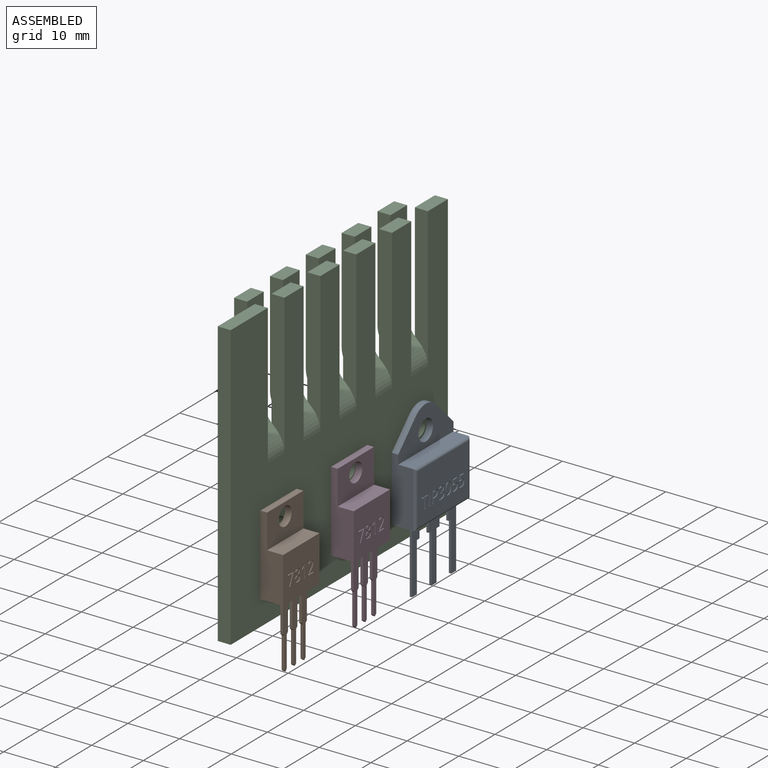
[diagram: assembled view]
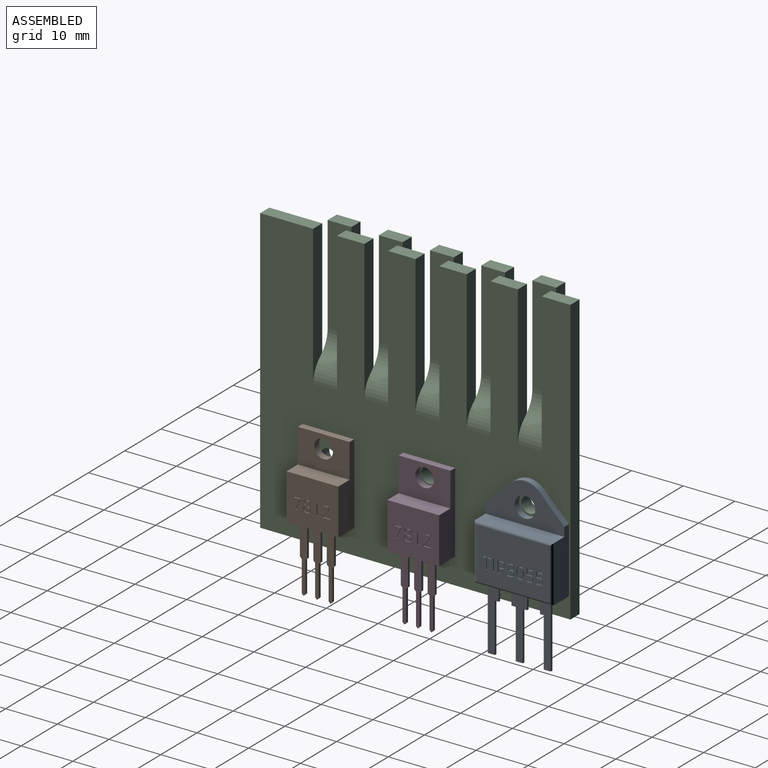
[diagram: assembled view, second angle]
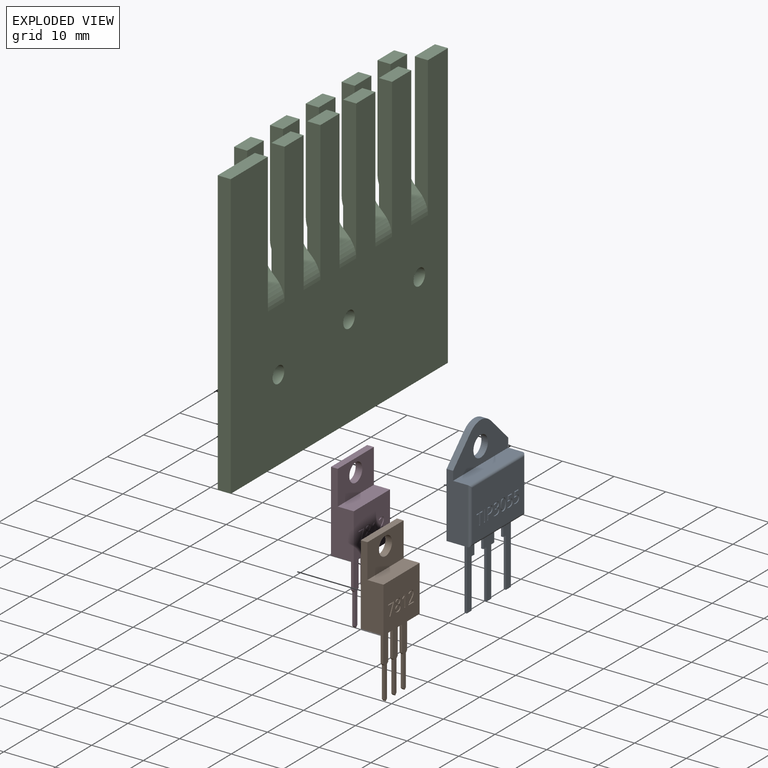
[diagram: exploded view]
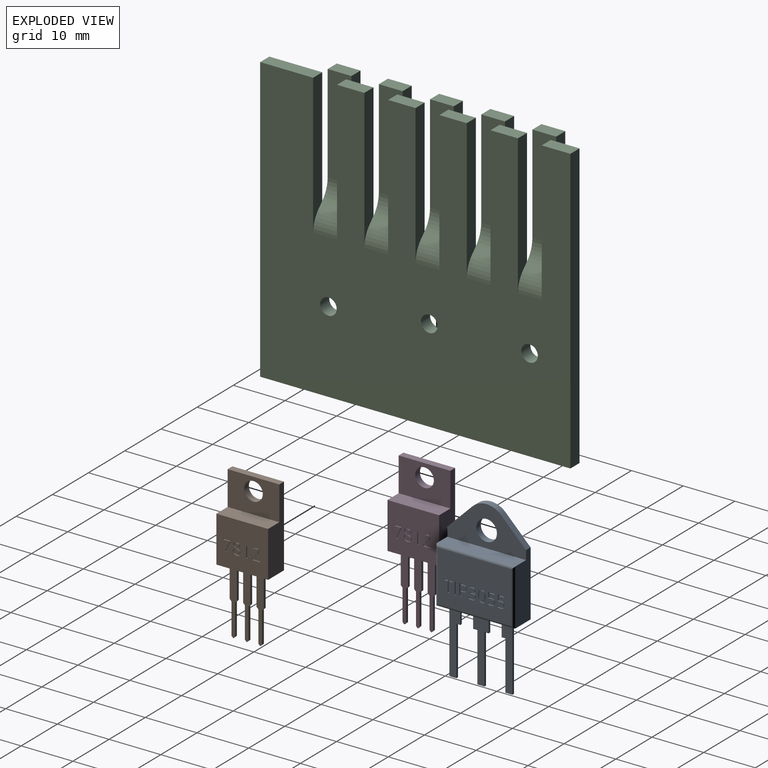
[diagram: exploded view, second angle]
ASSEMBLY  parts=4 mates=3
PART A: 157 faces, bbox 4.6x15.2x31.1 mm
  f0: plane 14.24x9.85mm, normal (-1,0,0), area 130mm2, adj f14,f15,f16,f17,f39,f40,f41,f42
  f1: plane 0.83x0.44mm, normal (0,0,-1), area 0.4mm2, adj f24,f25,f26,f37
  f2: plane 0.74x0.44mm, normal (0,0,-1), area 0.3mm2, adj f28,f29,f31,f34
  f3: plane 12.6x4.1mm, normal (0,1,0), area 46.7mm2, adj f5,f7,f8,f9,f11,f15
  f4: plane 12.6x4.1mm, normal (0,-1,0), area 46.7mm2, adj f5,f7,f8,f10,f11,f16
  f5: plane 15.24x4.1mm, normal (0,0,-1), area 59.3mm2, adj f3,f4,f7,f17,f18,f19,f20,f21
  f6: cylinder r=2mm len=4mm, axis (-1,0,0), area 15.8mm2, adj f7,f8
  f7: plane 18.6x15.24mm, normal (1,0,0), area 234.2mm2, adj f3,f4,f5,f6,f9,f10,f12,f13
  f8: plane 15.24x7.75mm, normal (-1,0,0), area 68.9mm2, adj f3,f4,f6,f9,f10,f11,f12,f13
  f9: plane 4.83x4.83mm, normal (0,0.71,0.71), area 8.6mm2, adj f3,f7,f8,f13
  f10: plane 4.83x4.83mm, normal (0,-0.71,0.71), area 8.6mm2, adj f4,f7,f8,f12
  f11: plane 15.24x2.84mm, normal (0,0,1), area 43.3mm2, adj f3,f4,f8,f14
  f12: cylinder r=4mm len=2.79mm, axis (1,0,0), area 3.9mm2, adj f7,f8,f10,f13
  f13: cylinder r=4mm len=2.79mm, axis (1,0,0), area 3.9mm2, adj f7,f8,f9,f12
  f14: cylinder r=0.5mm len=15.24mm, axis (0,-1,0), area 11.7mm2, adj f0,f11,f15,f16
  f15: cylinder r=0.5mm len=10.85mm, axis (0,0,-1), area 8.2mm2, adj f0,f3,f14,f17
  f16: cylinder r=0.5mm len=10.85mm, axis (0,0,1), area 8.2mm2, adj f0,f4,f14,f17
  f17: cylinder r=0.5mm len=15.24mm, axis (0,-1,0), area 11.7mm2, adj f0,f5,f15,f16
  f18: plane 12.5x0.44mm, normal (0,-1,0), area 5.5mm2, adj f5,f19,f21,f33
  f19: plane 12.5x2.09mm, normal (-1,0,0), area 19.1mm2, adj f5,f18,f20,f22,f32,f33
  f20: plane 3x0.44mm, normal (0,1,0), area 1.3mm2, adj f5,f19,f21,f22
  f21: plane 12.5x2.09mm, normal (1,0,0), area 19.1mm2, adj f5,f18,f20,f22,f32,f33
  f22: plane 0.74x0.44mm, normal (0,0,-1), area 0.3mm2, adj f19,f20,f21,f32
  f23: plane 3x0.44mm, normal (0,-1,0), area 1.3mm2, adj f5,f24,f26,f27
  f24: plane 12.5x3mm, normal (-1,0,0), area 21.8mm2, adj f1,f5,f23,f25,f27,f36,f37,f38
  f25: plane 3x0.44mm, normal (0,1,0), area 1.3mm2, adj f1,f5,f24,f26
  f26: plane 12.5x3mm, normal (1,0,0), area 21.8mm2, adj f1,f5,f23,f25,f27,f36,f37,f38
  f27: plane 0.83x0.44mm, normal (0,0,-1), area 0.4mm2, adj f23,f24,f26,f36
  f28: plane 3x0.44mm, normal (0,-1,0), area 1.3mm2, adj f2,f5,f29,f31
  f29: plane 12.5x2.09mm, normal (-1,0,0), area 19.1mm2, adj f2,f5,f28,f30,f34,f35
  f30: plane 12.5x0.44mm, normal (0,1,0), area 5.5mm2, adj f5,f29,f31,f35
  f31: plane 12.5x2.09mm, normal (1,0,0), area 19.1mm2, adj f2,f5,f28,f30,f34,f35
  f32: plane 9.5x0.44mm, normal (0,1,0), area 4.2mm2, adj f19,f21,f22,f33
  f33: plane 1.35x0.44mm, normal (0,0,-1), area 0.6mm2, adj f18,f19,f21,f32
  f34: plane 9.5x0.44mm, normal (0,-1,0), area 4.2mm2, adj f2,f29,f31,f35
  f35: plane 1.35x0.44mm, normal (0,0,-1), area 0.6mm2, adj f29,f30,f31,f34
  f36: plane 9.5x0.44mm, normal (0,-1,0), area 4.2mm2, adj f24,f26,f27,f38
  f37: plane 9.5x0.44mm, normal (0,1,0), area 4.2mm2, adj f1,f24,f26,f38
  f38: plane 1.35x0.44mm, normal (0,0,-1), area 0.6mm2, adj f24,f26,f36,f37
  f39: plane 2.3x0.2mm, normal (0,-1,0), area 0.5mm2, adj f0,f40,f42,f43
  f40: plane 0.27x0.2mm, normal (0,0,1), area 0.1mm2, adj f0,f39,f41,f43
  f41: plane 2.3x0.2mm, normal (0,1,0), area 0.5mm2, adj f0,f40,f42,f43
  f42: plane 0.27x0.2mm, normal (0,0,-1), area 0.1mm2, adj f0,f39,f41,f43
  f43: plane 2.3x0.27mm, normal (-1,0,0), area 0.6mm2, adj f39,f40,f41,f42
  f44: extruded ~0.36x0.2mm, area 0.1mm2, adj f0,f45,f71,f72
  f45: extruded ~0.42x0.2mm, area 0.1mm2, adj f0,f44,f46,f72
  f46: extruded ~0.52x0.2mm, area 0.1mm2, adj f0,f45,f47,f72
  f47: extruded ~0.39x0.2mm, area 0.1mm2, adj f0,f46,f48,f72
  f48: extruded ~0.33x0.2mm, area 0.1mm2, adj f0,f47,f49,f72
  f49: plane 0.2x0.18mm, normal (0,-0.8,0.6), area 0mm2, adj f0,f48,f50,f72
  f50: extruded ~0.31x0.2mm, area 0.1mm2, adj f0,f49,f51,f72
  f51: extruded ~0.28x0.2mm, area 0.1mm2, adj f0,f50,f52,f72
  f52: extruded ~0.31x0.2mm, area 0.1mm2, adj f0,f51,f53,f72
  f53: extruded ~0.26x0.2mm, area 0.1mm2, adj f0,f52,f54,f72
  f54: extruded ~0.33x0.2mm, area 0.1mm2, adj f0,f53,f55,f72
  f55: extruded ~0.43x0.2mm, area 0.1mm2, adj f0,f54,f56,f72
  f56: plane 0.23x0.2mm, normal (0,0,-1), area 0mm2, adj f0,f55,f57,f72
  f57: plane 0.22x0.2mm, normal (0,-1,0), area 0mm2, adj f0,f56,f58,f72
  f58: plane 0.23x0.2mm, normal (0,0,1), area 0mm2, adj f0,f57,f59,f72
  f59: extruded ~0.66x0.42mm, area 0.2mm2, adj f0,f58,f60,f72
  f60: extruded ~0.6x0.47mm, area 0.2mm2, adj f0,f59,f61,f72
  f61: extruded ~0.32x0.2mm, area 0.1mm2, adj f0,f60,f62,f72
  f62: extruded ~0.32x0.2mm, area 0.1mm2, adj f0,f61,f63,f72
  f63: plane 0.25x0.2mm, normal (0,-1,0), area 0mm2, adj f0,f62,f64,f72
  f64: extruded ~0.29x0.2mm, area 0.1mm2, adj f0,f63,f65,f72
  f65: extruded ~0.33x0.2mm, area 0.1mm2, adj f0,f64,f66,f72
  f66: extruded ~0.65x0.2mm, area 0.1mm2, adj f0,f65,f67,f72
  f67: extruded ~0.51x0.23mm, area 0.1mm2, adj f0,f66,f68,f72
  f68: extruded ~0.37x0.2mm, area 0.1mm2, adj f0,f67,f69,f72
  f69: extruded ~0.41x0.2mm, area 0.1mm2, adj f0,f68,f70,f72
  f70: plane 0.2x0.01mm, normal (0,1,0), area 0mm2, adj f0,f69,f71,f72
  f71: extruded ~0.35x0.2mm, area 0.1mm2, adj f0,f44,f70,f72
  f72: plane 2.36x1.5mm, normal (-1,0,0), area 1.2mm2, adj f44,f45,f46,f47,f48,f49,f50,f51
  f73: extruded ~0.57x0.2mm, area 0.1mm2, adj f0,f74,f91,f92
  f74: extruded ~0.36x0.2mm, area 0.1mm2, adj f0,f73,f75,f92
  f75: plane 0.69x0.2mm, normal (0,1,0.08), area 0.1mm2, adj f0,f74,f76,f92
  f76: plane 0.92x0.2mm, normal (0,0,1), area 0.2mm2, adj f0,f75,f77,f92
  f77: plane 0.24x0.2mm, normal (0,1,0), area 0mm2, adj f0,f76,f78,f92
  f78: plane 1.14x0.2mm, normal (0,0,-1), area 0.2mm2, adj f0,f77,f79,f92
  f79: plane 1.08x0.2mm, normal (0,-1,-0.08), area 0.2mm2, adj f0,f78,f80,f92
  f80: plane 0.2x0.14mm, normal (0,-0.54,0.84), area 0mm2, adj f0,f79,f81,f92
  f81: extruded ~0.4x0.2mm, area 0.1mm2, adj f0,f80,f82,f92
  f82: extruded ~0.59x0.48mm, area 0.2mm2, adj f0,f81,f83,f92
  f83: extruded ~0.38x0.2mm, area 0.1mm2, adj f0,f82,f84,f92
  f84: extruded ~0.43x0.2mm, area 0.1mm2, adj f0,f83,f85,f92
  f85: extruded ~0.32x0.2mm, area 0.1mm2, adj f0,f84,f86,f92
  f86: extruded ~0.27x0.2mm, area 0.1mm2, adj f0,f85,f87,f92
  f87: plane 0.25x0.2mm, normal (0,-1,0), area 0.1mm2, adj f0,f86,f88,f92
  f88: extruded ~0.59x0.2mm, area 0.1mm2, adj f0,f87,f89,f92
  f89: extruded ~0.63x0.2mm, area 0.1mm2, adj f0,f88,f90,f92
  f90: extruded ~0.56x0.23mm, area 0.1mm2, adj f0,f89,f91,f92
  f91: extruded ~0.49x0.21mm, area 0.1mm2, adj f0,f73,f90,f92
  f92: plane 2.33x1.45mm, normal (-1,0,0), area 1.2mm2, adj f73,f74,f75,f76,f77,f78,f79,f80
  f93: extruded ~0.57x0.2mm, area 0.1mm2, adj f0,f94,f111,f112
  f94: extruded ~0.36x0.2mm, area 0.1mm2, adj f0,f93,f95,f112
  f95: plane 0.69x0.2mm, normal (0,1,0.08), area 0.1mm2, adj f0,f94,f96,f112
  f96: plane 0.92x0.2mm, normal (0,0,1), area 0.2mm2, adj f0,f95,f97,f112
  f97: plane 0.24x0.2mm, normal (0,1,0), area 0mm2, adj f0,f96,f98,f112
  f98: plane 1.14x0.2mm, normal (0,0,-1), area 0.2mm2, adj f0,f97,f99,f112
  f99: plane 1.08x0.2mm, normal (0,-1,-0.08), area 0.2mm2, adj f0,f98,f100,f112
  f100: plane 0.2x0.14mm, normal (0,-0.54,0.84), area 0mm2, adj f0,f99,f101,f112
  f101: extruded ~0.4x0.2mm, area 0.1mm2, adj f0,f100,f102,f112
  f102: extruded ~0.59x0.48mm, area 0.2mm2, adj f0,f101,f103,f112
  f103: extruded ~0.38x0.2mm, area 0.1mm2, adj f0,f102,f104,f112
  f104: extruded ~0.43x0.2mm, area 0.1mm2, adj f0,f103,f105,f112
  f105: extruded ~0.32x0.2mm, area 0.1mm2, adj f0,f104,f106,f112
  f106: extruded ~0.27x0.2mm, area 0.1mm2, adj f0,f105,f107,f112
  f107: plane 0.25x0.2mm, normal (0,-1,0), area 0.1mm2, adj f0,f106,f108,f112
  f108: extruded ~0.59x0.2mm, area 0.1mm2, adj f0,f107,f109,f112
  f109: extruded ~0.63x0.2mm, area 0.1mm2, adj f0,f108,f110,f112
  f110: extruded ~0.56x0.23mm, area 0.1mm2, adj f0,f109,f111,f112
  f111: extruded ~0.49x0.21mm, area 0.1mm2, adj f0,f93,f110,f112
  f112: plane 2.33x1.45mm, normal (-1,0,0), area 1.2mm2, adj f93,f94,f95,f96,f97,f98,f99,f100
  f113: plane 0.24x0.2mm, normal (0,0,-1), area 0mm2, adj f114,f127,f128,f155
  f114: plane 0.93x0.2mm, normal (0,1,0), area 0.2mm2, adj f113,f115,f128,f155
  f115: plane 0.3x0.2mm, normal (0,0,1), area 0.1mm2, adj f114,f116,f128,f155
  f116: extruded ~0.47x0.2mm, area 0.1mm2, adj f115,f117,f128,f155
  f117: extruded ~0.34x0.2mm, area 0.1mm2, adj f116,f118,f128,f155
  f118: extruded ~0.37x0.2mm, area 0.1mm2, adj f117,f127,f128,f155
  f119: extruded ~0.54x0.24mm, area 0.1mm2, adj f0,f120,f126,f128
  f120: extruded ~0.86x0.67mm, area 0.2mm2, adj f0,f119,f121,f128
  f121: plane 0.6x0.2mm, normal (0,0,-1), area 0.1mm2, adj f0,f120,f122,f128
  f122: plane 2.3x0.2mm, normal (0,-1,0), area 0.5mm2, adj f0,f121,f123,f128
  f123: plane 0.27x0.2mm, normal (0,0,1), area 0.1mm2, adj f0,f122,f124,f128
  f124: plane 0.9x0.2mm, normal (0,1,0), area 0.2mm2, adj f0,f123,f125,f128
  f125: plane 0.27x0.2mm, normal (0,0,1), area 0.1mm2, adj f0,f124,f126,f128
  f126: extruded ~0.68x0.2mm, area 0.1mm2, adj f0,f119,f125,f128
  f127: extruded ~0.51x0.2mm, area 0.1mm2, adj f113,f118,f128,f155
  f128: plane 2.3x1.46mm, normal (-1,0,0), area 1.3mm2, adj f113,f114,f115,f116,f117,f118,f119,f120
  f129: extruded ~0.73x0.2mm, area 0.1mm2, adj f130,f144,f145,f156
  f130: extruded ~0.73x0.2mm, area 0.1mm2, adj f129,f131,f145,f156
  f131: extruded ~0.38x0.23mm, area 0.1mm2, adj f130,f132,f145,f156
  f132: extruded ~0.38x0.23mm, area 0.1mm2, adj f131,f133,f145,f156
  f133: extruded ~0.73x0.2mm, area 0.1mm2, adj f132,f134,f145,f156
  f134: extruded ~0.73x0.2mm, area 0.1mm2, adj f133,f135,f145,f156
  f135: extruded ~0.38x0.23mm, area 0.1mm2, adj f134,f144,f145,f156
  f136: extruded ~0.89x0.2mm, area 0.2mm2, adj f0,f137,f143,f145
  f137: extruded ~0.88x0.2mm, area 0.2mm2, adj f0,f136,f138,f145
  f138: extruded ~0.57x0.3mm, area 0.1mm2, adj f0,f137,f139,f145
  f139: extruded ~0.57x0.29mm, area 0.1mm2, adj f0,f138,f140,f145
  f140: extruded ~0.89x0.2mm, area 0.2mm2, adj f0,f139,f141,f145
  f141: extruded ~0.88x0.2mm, area 0.2mm2, adj f0,f140,f142,f145
  f142: extruded ~0.56x0.3mm, area 0.1mm2, adj f0,f141,f143,f145
  f143: extruded ~0.57x0.29mm, area 0.1mm2, adj f0,f136,f142,f145
  f144: extruded ~0.38x0.23mm, area 0.1mm2, adj f129,f135,f145,f156
  f145: plane 2.37x1.52mm, normal (-1,0,0), area 1.4mm2, adj f129,f130,f131,f132,f133,f134,f135,f136
  f146: plane 0.27x0.2mm, normal (0,0,1), area 0.1mm2, adj f0,f147,f153,f154
  f147: plane 2.06x0.2mm, normal (0,1,0), area 0.4mm2, adj f0,f146,f148,f154
  f148: plane 0.73x0.2mm, normal (0,0,1), area 0.1mm2, adj f0,f147,f149,f154
  f149: plane 0.24x0.2mm, normal (0,1,0), area 0mm2, adj f0,f148,f150,f154
  f150: plane 1.72x0.2mm, normal (0,0,-1), area 0.3mm2, adj f0,f149,f151,f154
  f151: plane 0.24x0.2mm, normal (0,-1,0), area 0mm2, adj f0,f150,f152,f154
  f152: plane 0.73x0.2mm, normal (0,0,1), area 0.1mm2, adj f0,f151,f153,f154
  f153: plane 2.06x0.2mm, normal (0,-1,0), area 0.4mm2, adj f0,f146,f152,f154
  f154: plane 2.3x1.72mm, normal (-1,0,0), area 1mm2, adj f146,f147,f148,f149,f150,f151,f152,f153
  f155: plane 0.93x0.91mm, normal (-1,0,0), area 0.8mm2, adj f113,f114,f115,f116,f117,f118,f127
  f156: plane 1.91x0.99mm, normal (-1,0,0), area 1.6mm2, adj f129,f130,f131,f132,f133,f134,f135,f144
PART B: 113 faces, bbox 4.4x10x28.2 mm
  f0: plane 10x8.9mm, normal (1,0,0), area 83.3mm2, adj f4,f5,f7,f9,f54,f55,f56,f57
  f1: plane 0.5x0.01mm, normal (0,0,-1), area 0mm2, adj f19,f21,f26,f35
  f2: plane 10x6.6mm, normal (1,0,0), area 55.8mm2, adj f3,f4,f6,f7,f9
  f3: plane 10x1.3mm, normal (0,0,1), area 13mm2, adj f2,f4,f7,f8
  f4: plane 15.5x4.4mm, normal (0,-1,0), area 47.7mm2, adj f0,f2,f3,f5,f8,f9
  f5: plane 10x4.4mm, normal (0,0,-1), area 41.9mm2, adj f0,f4,f7,f8,f10,f11,f12,f13
  f6: cylinder r=1.8mm len=3.6mm, axis (-1,0,0), area 14.7mm2, adj f2,f8
  f7: plane 15.5x4.4mm, normal (0,1,0), area 47.7mm2, adj f0,f2,f3,f5,f8,f9
  f8: plane 15.5x10mm, normal (-1,0,0), area 144.8mm2, adj f3,f4,f5,f6,f7
  f9: plane 10x3.1mm, normal (0,0,1), area 31mm2, adj f0,f2,f4,f7
  f10: plane 6x0.5mm, normal (0,-1,0), area 3mm2, adj f5,f11,f13,f39
  f11: plane 12.7x1.4mm, normal (-1,0,0), area 13.1mm2, adj f5,f10,f12,f22,f23,f32,f33,f38
  f12: plane 6x0.5mm, normal (0,1,0), area 3mm2, adj f5,f11,f13,f38
  f13: plane 12.7x1.4mm, normal (1,0,0), area 13.1mm2, adj f5,f10,f12,f22,f23,f32,f33,f38
  f14: plane 6x0.5mm, normal (0,-1,0), area 3mm2, adj f5,f15,f17,f37
  f15: plane 12.7x1.4mm, normal (-1,0,0), area 13.1mm2, adj f5,f14,f16,f24,f25,f30,f31,f36
  f16: plane 6x0.5mm, normal (0,1,0), area 3mm2, adj f5,f15,f17,f36
  f17: plane 12.7x1.4mm, normal (1,0,0), area 13.1mm2, adj f5,f14,f16,f24,f25,f30,f31,f36
  f18: plane 6x0.5mm, normal (0,-1,0), area 3mm2, adj f5,f19,f21,f35
  f19: plane 12.7x1.4mm, normal (-1,0,0), area 13.1mm2, adj f1,f5,f18,f20,f26,f27,f28,f29
  f20: plane 6x0.5mm, normal (0,1,0), area 3mm2, adj f5,f19,f21,f34
  f21: plane 12.7x1.4mm, normal (1,0,0), area 13.1mm2, adj f1,f5,f18,f20,f26,f27,f28,f29
  f22: plane 6x0.5mm, normal (0,-1,0), area 3mm2, adj f11,f13,f32,f39
  f23: plane 6x0.5mm, normal (0,1,0), area 3mm2, adj f11,f13,f33,f38
  f24: plane 6x0.5mm, normal (0,-1,0), area 3mm2, adj f15,f17,f30,f37
  f25: plane 6x0.5mm, normal (0,1,0), area 3mm2, adj f15,f17,f31,f36
  f26: plane 6x0.5mm, normal (0,-1,0), area 3mm2, adj f1,f19,f21,f28
  f27: plane 6.01x0.5mm, normal (0,1,0), area 3mm2, adj f19,f21,f29,f34
  f28: plane 0.5x0.35mm, normal (0,-0.71,-0.71), area 0.2mm2, adj f19,f21,f26,f29
  f29: plane 0.5x0.35mm, normal (0,0.71,-0.71), area 0.2mm2, adj f19,f21,f27,f28
  f30: plane 0.5x0.35mm, normal (0,-0.71,-0.71), area 0.2mm2, adj f15,f17,f24,f31
  f31: plane 0.5x0.35mm, normal (0,0.71,-0.71), area 0.2mm2, adj f15,f17,f25,f30
  f32: plane 0.5x0.35mm, normal (0,-0.71,-0.71), area 0.2mm2, adj f11,f13,f22,f33
  f33: plane 0.5x0.35mm, normal (0,0.71,-0.71), area 0.2mm2, adj f11,f13,f23,f32
  f34: plane 0.5x0.34mm, normal (0,0.71,-0.71), area 0.2mm2, adj f19,f20,f21,f27
  f35: plane 0.5x0.35mm, normal (0,-0.71,-0.71), area 0.2mm2, adj f1,f18,f19,f21
  f36: plane 0.5x0.35mm, normal (0,0.71,-0.71), area 0.2mm2, adj f15,f16,f17,f25
  f37: plane 0.5x0.35mm, normal (0,-0.71,-0.71), area 0.2mm2, adj f14,f15,f17,f24
  f38: plane 0.5x0.35mm, normal (0,0.71,-0.71), area 0.2mm2, adj f11,f12,f13,f23
  f39: plane 0.5x0.35mm, normal (0,-0.71,-0.71), area 0.2mm2, adj f10,f11,f13,f22
  f40: extruded ~0.31x0.2mm, area 0.1mm2, adj f41,f70,f71,f112
  f41: extruded ~0.32x0.2mm, area 0.1mm2, adj f40,f42,f71,f112
  f42: extruded ~0.25x0.2mm, area 0.1mm2, adj f41,f43,f71,f112
  f43: extruded ~0.25x0.2mm, area 0.1mm2, adj f42,f44,f71,f112
  f44: extruded ~0.32x0.2mm, area 0.1mm2, adj f43,f45,f71,f112
  f45: extruded ~0.35x0.21mm, area 0.1mm2, adj f44,f46,f71,f112
  f46: extruded ~0.25x0.2mm, area 0.1mm2, adj f45,f70,f71,f112
  f47: extruded ~0.3x0.2mm, area 0.1mm2, adj f48,f68,f71,f72
  f48: extruded ~0.29x0.2mm, area 0.1mm2, adj f47,f49,f71,f72
  f49: extruded ~0.34x0.22mm, area 0.1mm2, adj f48,f50,f71,f72
  f50: extruded ~0.43x0.23mm, area 0.1mm2, adj f49,f51,f71,f72
  f51: extruded ~0.27x0.2mm, area 0.1mm2, adj f50,f52,f71,f72
  f52: extruded ~0.3x0.2mm, area 0.1mm2, adj f51,f53,f71,f72
  f53: extruded ~0.37x0.2mm, area 0.1mm2, adj f52,f68,f71,f72
  f54: extruded ~0.5x0.2mm, area 0.1mm2, adj f0,f55,f69,f71
  f55: extruded ~0.5x0.2mm, area 0.1mm2, adj f0,f54,f56,f71
  f56: extruded ~0.4x0.2mm, area 0.1mm2, adj f0,f55,f57,f71
  f57: extruded ~0.32x0.2mm, area 0.1mm2, adj f0,f56,f58,f71
  f58: extruded ~0.31x0.27mm, area 0.1mm2, adj f0,f57,f59,f71
  f59: extruded ~0.62x0.48mm, area 0.2mm2, adj f0,f58,f60,f71
  f60: extruded ~0.46x0.2mm, area 0.1mm2, adj f0,f59,f61,f71
  f61: extruded ~0.57x0.2mm, area 0.1mm2, adj f0,f60,f62,f71
  f62: extruded ~0.55x0.2mm, area 0.1mm2, adj f0,f61,f63,f71
  f63: extruded ~0.46x0.2mm, area 0.1mm2, adj f0,f62,f64,f71
  f64: extruded ~0.34x0.2mm, area 0.1mm2, adj f0,f63,f65,f71
  f65: extruded ~0.4x0.28mm, area 0.1mm2, adj f0,f64,f66,f71
  f66: extruded ~0.34x0.26mm, area 0.1mm2, adj f0,f65,f67,f71
  f67: extruded ~0.31x0.2mm, area 0.1mm2, adj f0,f66,f69,f71
  f68: extruded ~0.37x0.2mm, area 0.1mm2, adj f47,f53,f71,f72
  f69: extruded ~0.41x0.2mm, area 0.1mm2, adj f0,f54,f67,f71
  f70: extruded ~0.25x0.2mm, area 0.1mm2, adj f40,f46,f71,f112
  f71: plane 2.38x1.52mm, normal (1,0,0), area 1.6mm2, adj f40,f41,f42,f43,f44,f45,f46,f47
  f72: plane 1x0.92mm, normal (1,0,0), area 0.7mm2, adj f47,f48,f49,f50,f51,f52,f53,f68
  f73: plane 1.52x0.2mm, normal (0,0,1), area 0.3mm2, adj f0,f74,f92,f93
  f74: plane 0.24x0.2mm, normal (0,-1,0), area 0mm2, adj f0,f73,f75,f93
  f75: plane 1.19x0.2mm, normal (0,0,-1), area 0.2mm2, adj f0,f74,f76,f93
  f76: plane 0.2x0.01mm, normal (0,-1,0), area 0mm2, adj f0,f75,f77,f93
  f77: plane 0.51x0.5mm, normal (0,-0.7,0.71), area 0.1mm2, adj f0,f76,f78,f93
  f78: extruded ~0.54x0.46mm, area 0.1mm2, adj f0,f77,f79,f93
  f79: extruded ~0.44x0.2mm, area 0.1mm2, adj f0,f78,f80,f93
  f80: extruded ~0.45x0.2mm, area 0.1mm2, adj f0,f79,f81,f93
  f81: extruded ~0.51x0.2mm, area 0.1mm2, adj f0,f80,f82,f93
  f82: extruded ~0.7x0.27mm, area 0.2mm2, adj f0,f81,f83,f93
  f83: plane 0.2x0.18mm, normal (0,0.79,0.61), area 0mm2, adj f0,f82,f84,f93
  f84: extruded ~0.29x0.2mm, area 0.1mm2, adj f0,f83,f85,f93
  f85: extruded ~0.27x0.2mm, area 0.1mm2, adj f0,f84,f86,f93
  f86: extruded ~0.31x0.2mm, area 0.1mm2, adj f0,f85,f87,f93
  f87: extruded ~0.29x0.2mm, area 0.1mm2, adj f0,f86,f88,f93
  f88: extruded ~0.25x0.2mm, area 0.1mm2, adj f0,f87,f89,f93
  f89: extruded ~0.23x0.2mm, area 0.1mm2, adj f0,f88,f90,f93
  f90: extruded ~0.4x0.37mm, area 0.1mm2, adj f0,f89,f91,f93
  f91: plane 0.61x0.61mm, normal (0,0.71,-0.71), area 0.2mm2, adj f0,f90,f92,f93
  f92: plane 0.23x0.2mm, normal (0,1,0), area 0mm2, adj f0,f73,f91,f93
  f93: plane 2.35x1.52mm, normal (1,0,0), area 1.2mm2, adj f73,f74,f75,f76,f77,f78,f79,f80
  f94: plane 0.26x0.2mm, normal (0,0,1), area 0.1mm2, adj f0,f95,f102,f103
  f95: plane 2.31x0.2mm, normal (0,-1,0), area 0.5mm2, adj f0,f94,f96,f103
  f96: plane 0.22x0.2mm, normal (0,0,-1), area 0mm2, adj f0,f95,f97,f103
  f97: plane 0.61x0.47mm, normal (0,0.61,-0.79), area 0.2mm2, adj f0,f96,f98,f103
  f98: plane 0.2x0.18mm, normal (0,0.79,0.61), area 0mm2, adj f0,f97,f99,f103
  f99: extruded ~0.38x0.31mm, area 0.1mm2, adj f0,f98,f100,f103
  f100: extruded ~0.2x0.07mm, area 0mm2, adj f0,f99,f101,f103
  f101: extruded ~0.39x0.2mm, area 0.1mm2, adj f0,f100,f102,f103
  f102: plane 1.65x0.2mm, normal (0,1,0), area 0.3mm2, adj f0,f94,f101,f103
  f103: plane 2.31x0.83mm, normal (1,0,0), area 0.7mm2, adj f94,f95,f96,f97,f98,f99,f100,f101
  f104: plane 2.07x0.96mm, normal (0,0.91,-0.42), area 0.5mm2, adj f0,f105,f110,f111
  f105: plane 0.29x0.2mm, normal (0,0,1), area 0.1mm2, adj f0,f104,f106,f111
  f106: plane 2.1x0.95mm, normal (0,-0.91,0.41), area 0.5mm2, adj f0,f105,f107,f111
  f107: plane 0.21x0.2mm, normal (0,-1,0), area 0mm2, adj f0,f106,f108,f111
  f108: plane 1.54x0.2mm, normal (0,0,-1), area 0.3mm2, adj f0,f107,f109,f111
  f109: plane 0.24x0.2mm, normal (0,1,0), area 0mm2, adj f0,f108,f110,f111
  f110: plane 1.26x0.2mm, normal (0,0,1), area 0.3mm2, adj f0,f104,f109,f111
  f111: plane 2.31x1.54mm, normal (1,0,0), area 0.9mm2, adj f104,f105,f106,f107,f108,f109,f110
  f112: plane 0.85x0.81mm, normal (1,0,0), area 0.5mm2, adj f40,f41,f42,f43,f44,f45,f46,f70
PART C: 79 faces, bbox 6.5x60x55 mm
  f0: plane 5.3x2.52mm, normal (0,0,1), area 13.4mm2, adj f5,f10,f17,f20
  f1: plane 5.3x2.52mm, normal (0,0,1), area 13.4mm2, adj f5,f10,f15,f18
  f2: plane 10.25x2.52mm, normal (0,0,1), area 25.8mm2, adj f5,f8,f10,f16
  f3: plane 5.55x2.52mm, normal (0,0,1), area 14mm2, adj f5,f6,f10,f14
  f4: plane 5.3x2.52mm, normal (0,0,1), area 13.4mm2, adj f5,f10,f12,f19
  f5: plane 60x55mm, normal (1,0,0), area 2653.2mm2, adj f0,f1,f2,f3,f4,f6,f7,f8
  f6: plane 55x2.52mm, normal (0,1,0), area 138.6mm2, adj f3,f5,f9,f10
  f7: plane 5.3x2.52mm, normal (0,0,1), area 13.4mm2, adj f5,f10,f11,f13
  f8: plane 55x2.52mm, normal (0,-1,0), area 138.6mm2, adj f2,f5,f9,f10
  f9: plane 60x2.52mm, normal (0,0,-1), area 151.2mm2, adj f5,f6,f8,f10
  f10: plane 60x55mm, normal (-1,0,0), area 2630.2mm2, adj f0,f1,f2,f3,f4,f6,f7,f8
  f11: plane 27.07x2.52mm, normal (0,-1,0), area 60.4mm2, adj f5,f7,f10,f38,f78
  f12: plane 27.07x2.52mm, normal (0,1,0), area 60.4mm2, adj f4,f5,f10,f38,f78
  f13: plane 27.07x2.52mm, normal (0,1,0), area 60.4mm2, adj f5,f7,f10,f57,f74
  f14: plane 27.07x2.52mm, normal (0,-1,0), area 60.4mm2, adj f3,f5,f10,f57,f74
  f15: plane 27.07x2.52mm, normal (0,-1,0), area 60.4mm2, adj f1,f5,f10,f50,f75
  f16: plane 27.07x2.52mm, normal (0,1,0), area 60.4mm2, adj f2,f5,f10,f50,f75
  f17: plane 27.07x2.52mm, normal (0,-1,0), area 60.4mm2, adj f0,f5,f10,f46,f76
  f18: plane 27.07x2.52mm, normal (0,1,0), area 60.4mm2, adj f1,f5,f10,f46,f76
  f19: plane 27.07x2.52mm, normal (0,-1,0), area 60.4mm2, adj f4,f5,f10,f42,f77
  f20: plane 27.07x2.52mm, normal (0,1,0), area 60.4mm2, adj f0,f5,f10,f42,f77
  f21: plane 28.07x4mm, normal (0,1,0), area 64.4mm2, adj f10,f23,f36,f37,f38,f39,f71,f72
  f22: plane 28.07x4mm, normal (0,-1,0), area 64.4mm2, adj f10,f23,f36,f37,f38,f39,f71,f72
  f23: plane 19.93x4.6mm, normal (-1,0,0), area 91.7mm2, adj f21,f22,f37,f72
  f24: plane 28.07x4mm, normal (0,1,0), area 64.4mm2, adj f10,f26,f40,f41,f42,f43,f68,f69
  f25: plane 28.07x4mm, normal (0,-1,0), area 64.4mm2, adj f10,f26,f40,f41,f42,f43,f68,f69
  f26: plane 19.93x4.6mm, normal (-1,0,0), area 91.7mm2, adj f24,f25,f41,f69
  f27: plane 28.07x4mm, normal (0,1,0), area 64.4mm2, adj f10,f29,f44,f45,f46,f47,f65,f66
  f28: plane 28.07x4mm, normal (0,-1,0), area 64.4mm2, adj f10,f29,f44,f45,f46,f47,f65,f66
  f29: plane 19.93x4.6mm, normal (-1,0,0), area 91.7mm2, adj f27,f28,f45,f66
  f30: plane 28.07x4mm, normal (0,1,0), area 64.4mm2, adj f10,f32,f48,f49,f50,f51,f62,f63
  f31: plane 28.07x4mm, normal (0,-1,0), area 64.4mm2, adj f10,f32,f48,f49,f50,f51,f62,f63
  f32: plane 19.93x4.6mm, normal (-1,0,0), area 91.7mm2, adj f30,f31,f49,f63
  f33: plane 28.07x4mm, normal (0,-1,0), area 64.4mm2, adj f10,f35,f55,f56,f57,f58,f59,f60
  f34: plane 28.07x4mm, normal (0,1,0), area 64.4mm2, adj f10,f35,f55,f56,f57,f58,f59,f60
  f35: plane 19.93x4.6mm, normal (-1,0,0), area 91.7mm2, adj f33,f34,f56,f60
  f36: plane 18.93x4.6mm, normal (1,0,0), area 87.1mm2, adj f21,f22,f37,f73
  f37: plane 4.6x2.52mm, normal (0,0,1), area 11.6mm2, adj f21,f22,f23,f36
  f38: plane 4.6x1.07mm, normal (0.71,0,0.71), area 7mm2, adj f11,f12,f21,f22,f73,f78
  f39: plane 4.6x1.07mm, normal (-0.71,0,-0.71), area 7mm2, adj f21,f22,f71,f72
  f40: plane 18.93x4.6mm, normal (1,0,0), area 87.1mm2, adj f24,f25,f41,f70
  f41: plane 4.6x2.52mm, normal (0,0,1), area 11.6mm2, adj f24,f25,f26,f40
  f42: plane 4.6x1.07mm, normal (0.71,0,0.71), area 7mm2, adj f19,f20,f24,f25,f70,f77
  f43: plane 4.6x1.07mm, normal (-0.71,0,-0.71), area 7mm2, adj f24,f25,f68,f69
  f44: plane 18.93x4.6mm, normal (1,0,0), area 87.1mm2, adj f27,f28,f45,f67
  f45: plane 4.6x2.52mm, normal (0,0,1), area 11.6mm2, adj f27,f28,f29,f44
  f46: plane 4.6x1.07mm, normal (0.71,0,0.71), area 7mm2, adj f17,f18,f27,f28,f67,f76
  f47: plane 4.6x1.07mm, normal (-0.71,0,-0.71), area 7mm2, adj f27,f28,f65,f66
  f48: plane 18.93x4.6mm, normal (1,0,0), area 87.1mm2, adj f30,f31,f49,f64
  f49: plane 4.6x2.52mm, normal (0,0,1), area 11.6mm2, adj f30,f31,f32,f48
  f50: plane 4.6x1.07mm, normal (0.71,0,0.71), area 7mm2, adj f15,f16,f30,f31,f64,f75
  f51: plane 4.6x1.07mm, normal (-0.71,0,-0.71), area 7mm2, adj f30,f31,f62,f63
  f52: cylinder r=1.6mm len=3.2mm, axis (1,0,0), area 25.3mm2, adj f5,f10
  f53: cylinder r=1.6mm len=3.2mm, axis (1,0,0), area 25.3mm2, adj f5,f10
  f54: cylinder r=1.6mm len=3.2mm, axis (1,0,0), area 25.3mm2, adj f5,f10
  f55: plane 18.93x4.6mm, normal (1,0,0), area 87.1mm2, adj f33,f34,f56,f61
  f56: plane 4.6x2.52mm, normal (0,0,1), area 11.6mm2, adj f33,f34,f35,f55
  f57: plane 4.6x1.07mm, normal (0.71,0,0.71), area 7mm2, adj f13,f14,f33,f34,f61,f74
  f58: plane 4.6x1.07mm, normal (-0.71,0,-0.71), area 7mm2, adj f33,f34,f59,f60
  f59: cylinder r=5mm len=4.6mm, axis (0,-1,0), area 18.1mm2, adj f10,f33,f34,f58
  f60: cylinder r=5mm len=4.6mm, axis (0,1,0), area 18.1mm2, adj f33,f34,f35,f58
  f61: cylinder r=5mm len=4.6mm, axis (0,-1,0), area 18.1mm2, adj f33,f34,f55,f57
  f62: cylinder r=5mm len=4.6mm, axis (0,1,0), area 18.1mm2, adj f10,f30,f31,f51
  f63: cylinder r=5mm len=4.6mm, axis (0,-1,0), area 18.1mm2, adj f30,f31,f32,f51
  f64: cylinder r=5mm len=4.6mm, axis (0,-1,0), area 18.1mm2, adj f30,f31,f48,f50
  f65: cylinder r=5mm len=4.6mm, axis (0,1,0), area 18.1mm2, adj f10,f27,f28,f47
  f66: cylinder r=5mm len=4.6mm, axis (0,-1,0), area 18.1mm2, adj f27,f28,f29,f47
  f67: cylinder r=5mm len=4.6mm, axis (0,-1,0), area 18.1mm2, adj f27,f28,f44,f46
  f68: cylinder r=5mm len=4.6mm, axis (0,1,0), area 18.1mm2, adj f10,f24,f25,f43
  f69: cylinder r=5mm len=4.6mm, axis (0,-1,0), area 18.1mm2, adj f24,f25,f26,f43
  f70: cylinder r=5mm len=4.6mm, axis (0,-1,0), area 18.1mm2, adj f24,f25,f40,f42
  f71: cylinder r=5mm len=4.6mm, axis (0,1,0), area 18.1mm2, adj f10,f21,f22,f39
  f72: cylinder r=5mm len=4.6mm, axis (0,-1,0), area 18.1mm2, adj f21,f22,f23,f39
  f73: cylinder r=5mm len=4.6mm, axis (0,-1,0), area 18.1mm2, adj f21,f22,f36,f38
  f74: cylinder r=5mm len=4.6mm, axis (0,-1,0), area 18.1mm2, adj f5,f13,f14,f57
  f75: cylinder r=5mm len=4.6mm, axis (0,-1,0), area 18.1mm2, adj f5,f15,f16,f50
  f76: cylinder r=5mm len=4.6mm, axis (0,-1,0), area 18.1mm2, adj f5,f17,f18,f46
  f77: cylinder r=5mm len=4.6mm, axis (0,-1,0), area 18.1mm2, adj f5,f19,f20,f42
  f78: cylinder r=5mm len=4.6mm, axis (0,1,0), area 18.1mm2, adj f5,f11,f12,f38
PART D: same geometry as B
PLACE A rot(axis=(0,0,1),180deg) t=(-20.19,-11.7,-38.8)mm
PLACE B t=(-21.45,-50.6,-39)mm
PLACE C t=(-23.97,-3.8,-1.8)mm
PLACE D t=(-21.45,-31.1,-38.8)mm
MATE fastened A.f6 <-> C.f54  axis (-1,0,0) through (-21.45,-11.7,-38.8)mm
MATE fastened B.f6 <-> C.f5  axis (-1,0,0) through (-21.45,-50.6,-39)mm
MATE fastened D.f6 <-> C.f53  axis (-1,0,0) through (-21.45,-31.1,-38.8)mm
